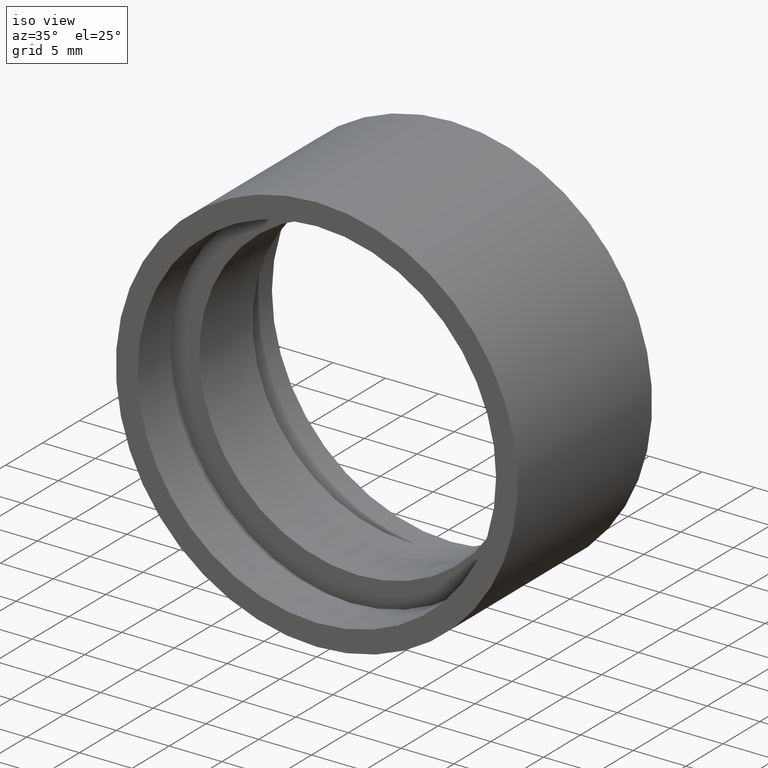
[diagram: clean part render]
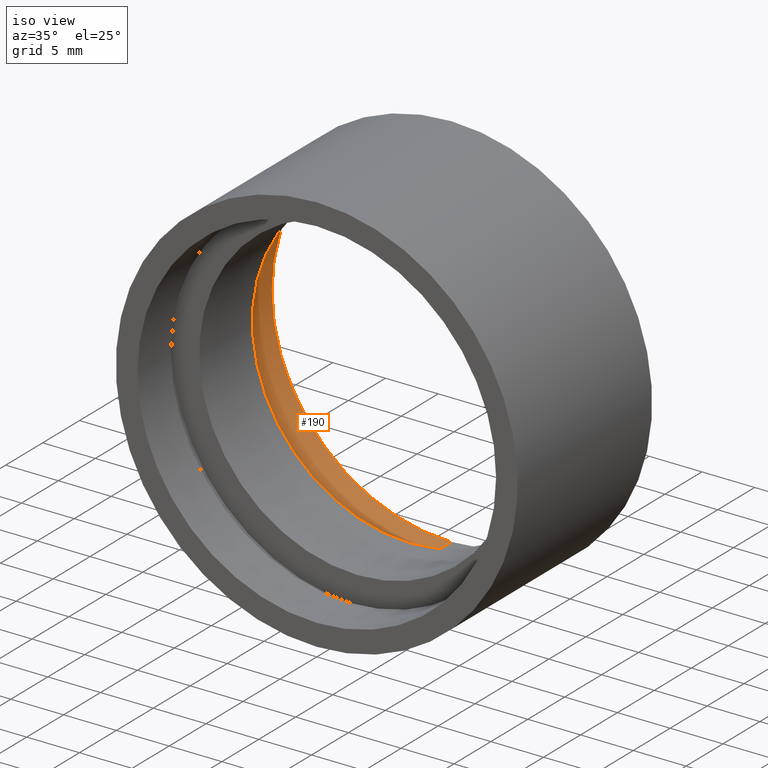
[diagram: same view with one face highlighted and labeled with its STEP entity id]
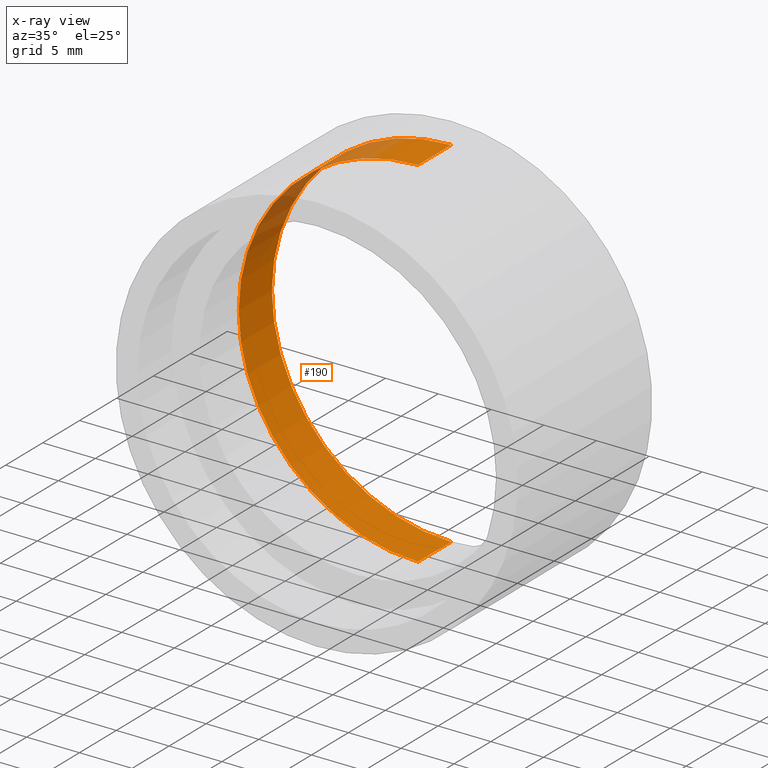
[diagram: x-ray of the same camera — body ghosted, the highlighted face saturated]
A machine part, iso view. The second image highlights one B-rep face of the part: STEP entity #190.
The next image is the same camera in x-ray: the body ghosted, the highlighted face saturated — about 14% of this face is hidden behind the body in this view.
In plain terms, the highlighted cylindrical surface (partial cylindrical patch) has radius 17 mm, axis along (-0, 1, -0).
Its self-contained STEP definition (entity closure, byte-faithful):
#37 = CIRCLE ( 'NONE', #483, 17.00000000000002100 ) ;
#40 = AXIS2_PLACEMENT_3D ( 'NONE', #221, #126, #509 ) ;
#42 = FACE_OUTER_BOUND ( 'NONE', #305, .T. ) ;
#102 = LINE ( 'NONE', #405, #544 ) ;
#121 = CARTESIAN_POINT ( 'NONE',  ( 2.081899558550503000E-015, 18.19999999999999600, -17.00000000000002100 ) ) ;
#126 = DIRECTION ( 'NONE',  ( -0.0000000000000000000, 1.000000000000000000, -0.0000000000000000000 ) ) ;
#129 = CIRCLE ( 'NONE', #449, 17.00000000000002100 ) ;
#136 = DIRECTION ( 'NONE',  ( -0.0000000000000000000, 1.000000000000000000, -0.0000000000000000000 ) ) ;
#157 = LINE ( 'NONE', #613, #354 ) ;
#163 = VERTEX_POINT ( 'NONE', #121 ) ;
#164 = CYLINDRICAL_SURFACE ( 'NONE', #40, 17.00000000000002100 ) ;
#176 = EDGE_CURVE ( 'NONE', #470, #163, #157, .T. ) ;
#184 = ORIENTED_EDGE ( 'NONE', *, *, #596, .T. ) ;
#187 = CARTESIAN_POINT ( 'NONE',  ( 0.0000000000000000000, 13.69999999999999000, 17.00000000000002100 ) ) ;
#190 = ADVANCED_FACE ( 'NONE', ( #42 ), #164, .F. ) ;
#204 = ORIENTED_EDGE ( 'NONE', *, *, #585, .F. ) ;
#221 = CARTESIAN_POINT ( 'NONE',  ( 0.0000000000000000000, 161.3761669434274500, 0.0000000000000000000 ) ) ;
#247 = EDGE_CURVE ( 'NONE', #470, #622, #129, .T. ) ;
#267 = DIRECTION ( 'NONE',  ( -0.0000000000000000000, 1.000000000000000000, -0.0000000000000000000 ) ) ;
#279 = CARTESIAN_POINT ( 'NONE',  ( 0.0000000000000000000, 13.69999999999999000, 0.0000000000000000000 ) ) ;
#305 = EDGE_LOOP ( 'NONE', ( #571, #378, #184, #204 ) ) ;
#326 = CARTESIAN_POINT ( 'NONE',  ( 0.0000000000000000000, 18.19999999999999600, 0.0000000000000000000 ) ) ;
#354 = VECTOR ( 'NONE', #601, 1000.000000000000000 ) ;
#378 = ORIENTED_EDGE ( 'NONE', *, *, #176, .T. ) ;
#405 = CARTESIAN_POINT ( 'NONE',  ( 0.0000000000000000000, 161.3761669434274500, 17.00000000000002100 ) ) ;
#449 = AXIS2_PLACEMENT_3D ( 'NONE', #279, #452, #552 ) ;
#452 = DIRECTION ( 'NONE',  ( -0.0000000000000000000, 1.000000000000000000, -0.0000000000000000000 ) ) ;
#462 = DIRECTION ( 'NONE',  ( 0.0000000000000000000, 0.0000000000000000000, 1.000000000000000000 ) ) ;
#470 = VERTEX_POINT ( 'NONE', #478 ) ;
#478 = CARTESIAN_POINT ( 'NONE',  ( 2.081899558550503000E-015, 13.69999999999999000, -17.00000000000002100 ) ) ;
#483 = AXIS2_PLACEMENT_3D ( 'NONE', #326, #136, #462 ) ;
#509 = DIRECTION ( 'NONE',  ( 0.0000000000000000000, 0.0000000000000000000, 1.000000000000000000 ) ) ;
#544 = VECTOR ( 'NONE', #267, 1000.000000000000000 ) ;
#552 = DIRECTION ( 'NONE',  ( 0.0000000000000000000, 0.0000000000000000000, 1.000000000000000000 ) ) ;
#571 = ORIENTED_EDGE ( 'NONE', *, *, #247, .F. ) ;
#577 = VERTEX_POINT ( 'NONE', #607 ) ;
#585 = EDGE_CURVE ( 'NONE', #622, #577, #102, .T. ) ;
#596 = EDGE_CURVE ( 'NONE', #163, #577, #37, .T. ) ;
#601 = DIRECTION ( 'NONE',  ( -0.0000000000000000000, 1.000000000000000000, -0.0000000000000000000 ) ) ;
#607 = CARTESIAN_POINT ( 'NONE',  ( 0.0000000000000000000, 18.19999999999999600, 17.00000000000002100 ) ) ;
#613 = CARTESIAN_POINT ( 'NONE',  ( 2.081899558550503000E-015, 161.3761669434274500, -17.00000000000002100 ) ) ;
#622 = VERTEX_POINT ( 'NONE', #187 ) ;